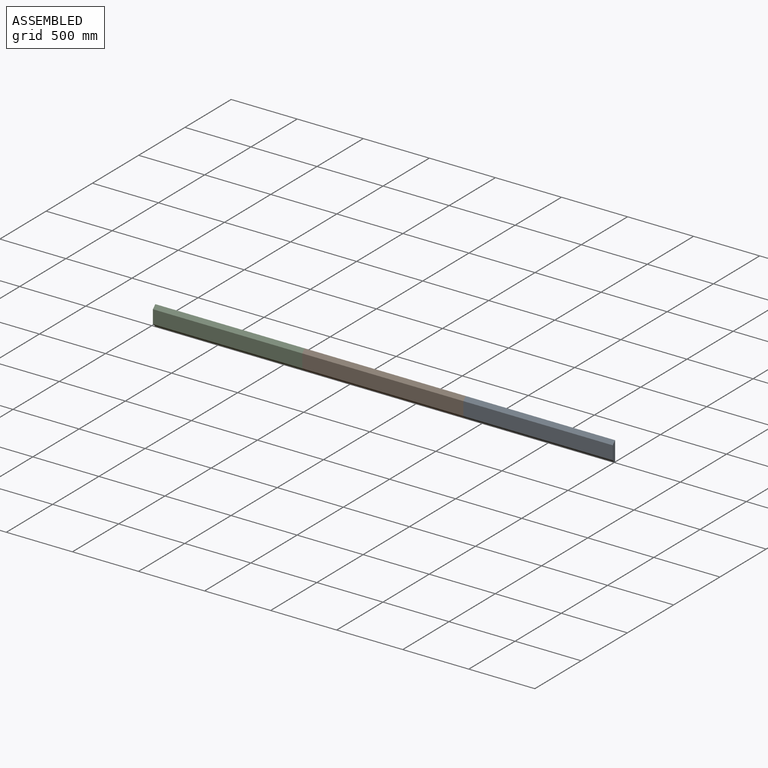
[diagram: assembled view]
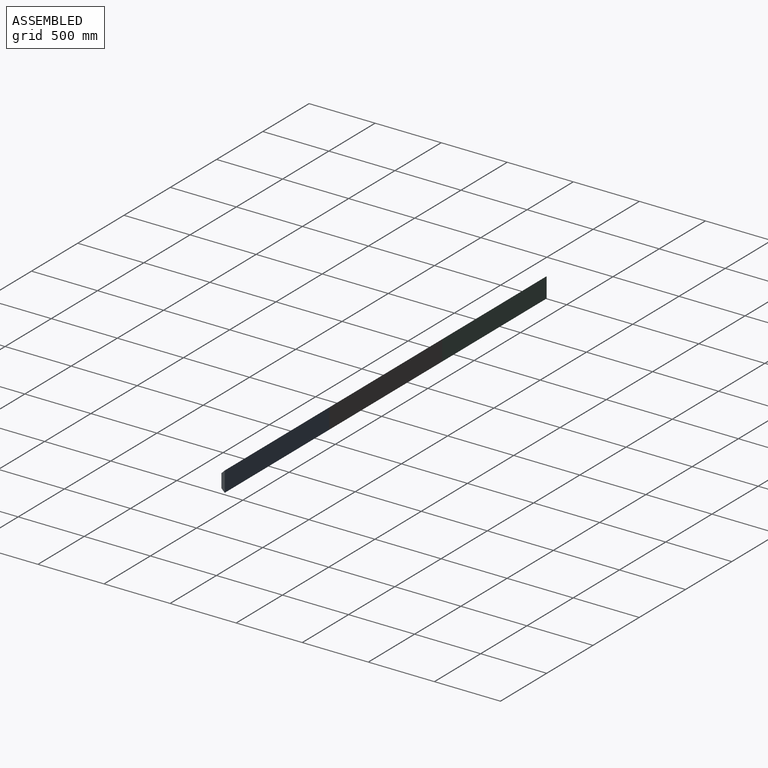
[diagram: assembled view, second angle]
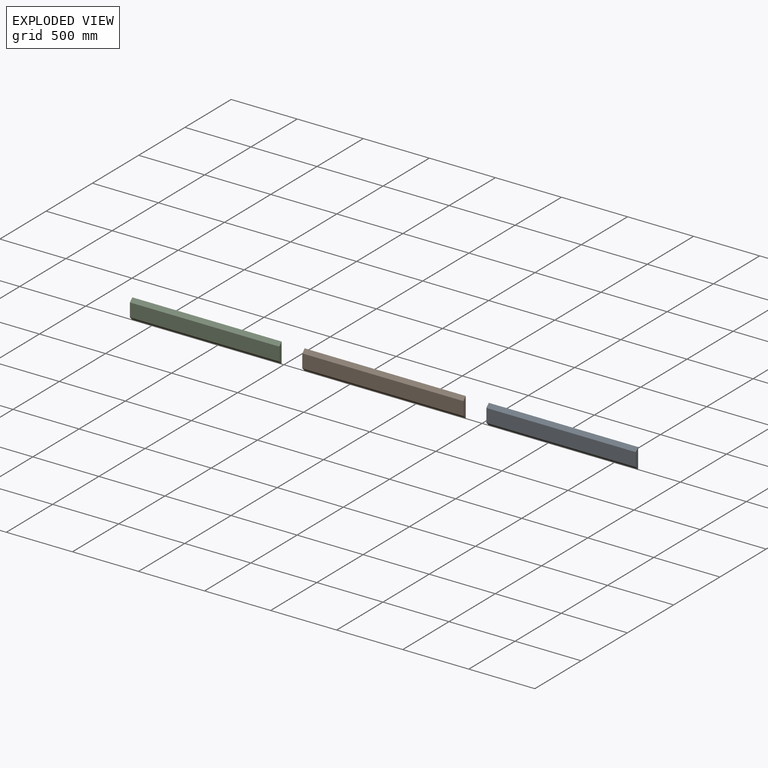
[diagram: exploded view]
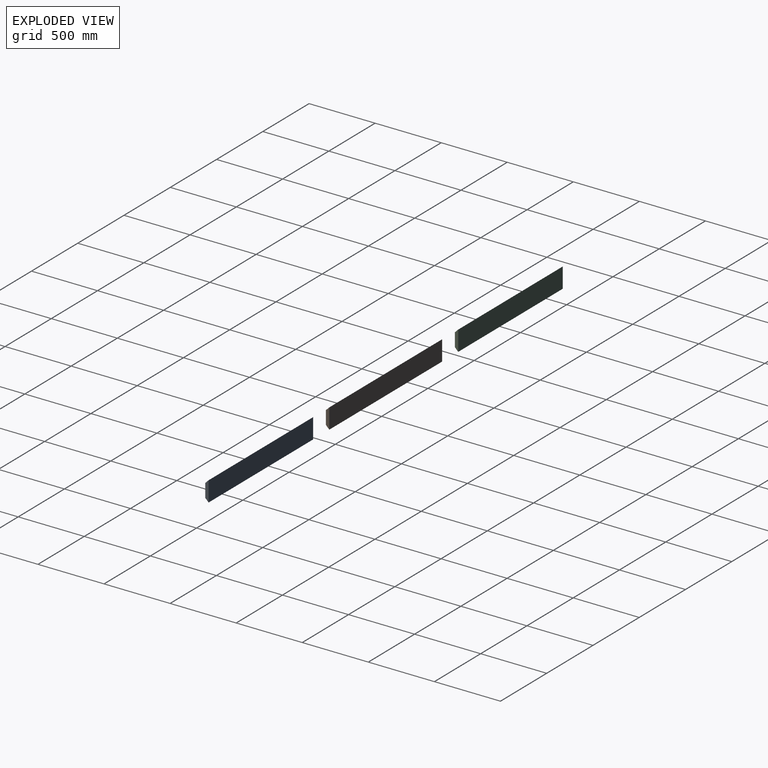
[diagram: exploded view, second angle]
ASSEMBLY  parts=3 mates=2
PART A: 6 faces, bbox 1130.3x25.4x152.4 mm
  f0: plane 1130.3x25.4mm, normal (0,-0.71,-0.71), area 40601.5mm2, adj f1,f3,f4,f5
  f1: plane 1130.3x152.4mm, normal (0,1,0), area 172257.7mm2, adj f0,f2,f4,f5
  f2: plane 1130.3x25.4mm, normal (0,-0.71,0.71), area 40601.5mm2, adj f1,f3,f4,f5
  f3: plane 1130.3x101.6mm, normal (0,-1,0), area 114838.5mm2, adj f0,f2,f4,f5
  f4: plane 152.4x25.4mm, normal (1,0,0), area 3225.8mm2, adj f0,f1,f2,f3
  f5: plane 152.4x25.4mm, normal (-1,0,0), area 3225.8mm2, adj f0,f1,f2,f3
PART B: 6 faces, bbox 1219.2x25.4x152.4 mm
  f0: plane 1219.2x25.4mm, normal (0,-0.71,-0.71), area 43794.9mm2, adj f1,f3,f4,f5
  f1: plane 1219.2x101.6mm, normal (0,-1,0), area 123870.7mm2, adj f0,f2,f4,f5
  f2: plane 1219.2x25.4mm, normal (0,-0.71,0.71), area 43794.9mm2, adj f1,f3,f4,f5
  f3: plane 1219.2x152.4mm, normal (0,1,0), area 185806.1mm2, adj f0,f2,f4,f5
  f4: plane 152.4x25.4mm, normal (1,0,0), area 3225.8mm2, adj f0,f1,f2,f3
  f5: plane 152.4x25.4mm, normal (-1,0,0), area 3225.8mm2, adj f0,f1,f2,f3
PART C: same geometry as A
PLACE A t=(190.5,0,0)mm
PLACE B t=(1219.2,0,0)mm fixed
PLACE C t=(-2159,0,0)mm
MATE fastened B.f4 <-> A.f5  axis (1,0,0) through (2438.4,-100.75,1696.3)mm
MATE fastened B.f5 <-> C.f4  axis (-1,0,0) through (1219.2,-100.75,1696.3)mm
